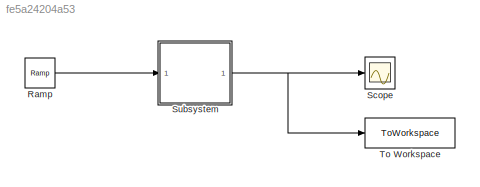
MODEL slx_fe5a24204a53
KIND model
CONFIG AbsTol = auto
CONFIG EnableMultiTasking = off
CONFIG FixedStep = auto
CONFIG MaxStep = auto
CONFIG MinStep = auto
CONFIG RelTol = 1e-3
CONFIG SampleTimeConstraint = Unconstrained
CONFIG SolverName = VariableStepAuto
CONFIG StartTime = 0.0
CONFIG StopTime = 10.0
WORKSPACE source: mxarray member
WORKSPACE a0 = -5
WORKSPACE a1 = -4
WORKSPACE a2 = 1
BLOCK [Reference] Ramp  REF=simulink/Sources/Ramp
  SourceBlock = simulink/Sources/Ramp
  SourceType = Ramp
BLOCK [Scope] Scope
  Floating = off
  NumInputPorts = 1
  ScopeSpecificationString = Simulink.scopes.TimeScopeBlockCfg('CurrentConfiguration', extmgr.ConfigurationSet(extmgr.Configuration('Core','General UI',true),extmgr.Configuration('Core','Source UI',true),extmgr.Configuration('Sources','WiredSimulink',true),extmgr.Configuration('Visuals','Time Domain',true,'SerializedDisplays',{struct('MinYLimReal','-35.41123','MaxYLimReal','328.70107','YLabelReal','','MinYLimMag','0.00000','M...<+1453ch>
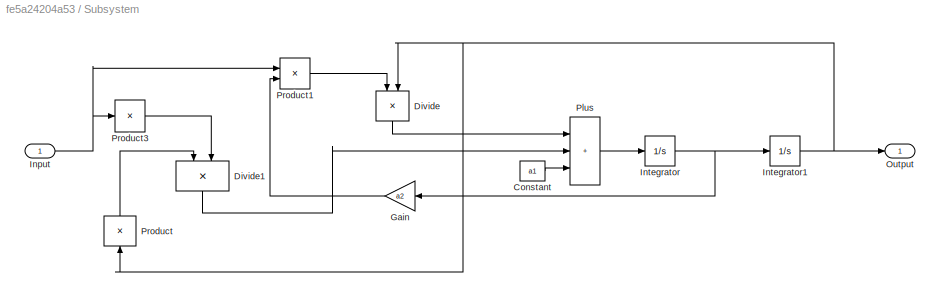
BLOCK [SubSystem] Subsystem
BLOCK [Constant] Subsystem/Constant
  Value = a1
BLOCK [Product] Subsystem/Divide
  Inputs = */
  NameLocation = right
  RndMeth = Zero
  SaturateOnIntegerOverflow = on
BLOCK [Product] Subsystem/Divide1
  Inputs = /*
  NameLocation = right
  RndMeth = Zero
  SaturateOnIntegerOverflow = on
BLOCK [Gain] Subsystem/Gain
  Gain = a2
BLOCK [Inport] Subsystem/Input
  NameLocation = top
BLOCK [Integrator] Subsystem/Integrator
BLOCK [Integrator] Subsystem/Integrator1
  InitialCondition = 1
BLOCK [Outport] Subsystem/Output
BLOCK [Sum] Subsystem/Plus
  IconShape = rectangular
  Inputs = +++
BLOCK [Product] Subsystem/Product
  Inputs = 1
  NameLocation = left
BLOCK [Product] Subsystem/Product1
  NameLocation = top
BLOCK [Product] Subsystem/Product3
  Inputs = 1
  NameLocation = top
BLOCK [ToWorkspace] To Workspace
  FixptAsFi = on
  MaxDataPoints = inf
  SampleTime = -1
  SaveFormat = Timeseries
  VariableName = simout
LINE Ramp:1 -> Subsystem:1
LINE Subsystem/Constant:1 -> Subsystem/Plus:3
LINE Subsystem/Divide1:1 -> Subsystem/Plus:2
LINE Subsystem/Divide:1 -> Subsystem/Plus:1
LINE Subsystem/Gain:1 -> Subsystem/Product1:2
NET Subsystem/Input:1 -> Subsystem/Product1:1, Subsystem/Product3:1
NET Subsystem/Integrator1:1 -> Subsystem/Divide:2, Subsystem/Output:1, Subsystem/Product:1
NET Subsystem/Integrator:1 -> Subsystem/Gain:1, Subsystem/Integrator1:1
LINE Subsystem/Plus:1 -> Subsystem/Integrator:1
LINE Subsystem/Product1:1 -> Subsystem/Divide:1
LINE Subsystem/Product3:1 -> Subsystem/Divide1:2
LINE Subsystem/Product:1 -> Subsystem/Divide1:1
NET Subsystem:1 -> Scope:1, To Workspace:1
note: NET lines group one-source signal fan-out (src -> all destinations, sorted); 1:1 wires keep LINE
